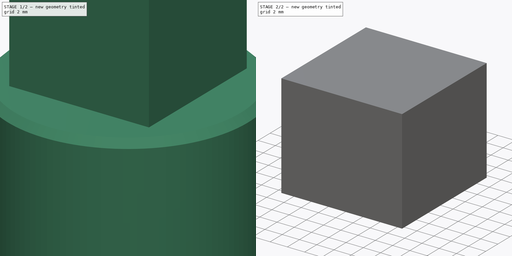
[diagram: build sequence overview — one tinted view per stage of 2, left to right]
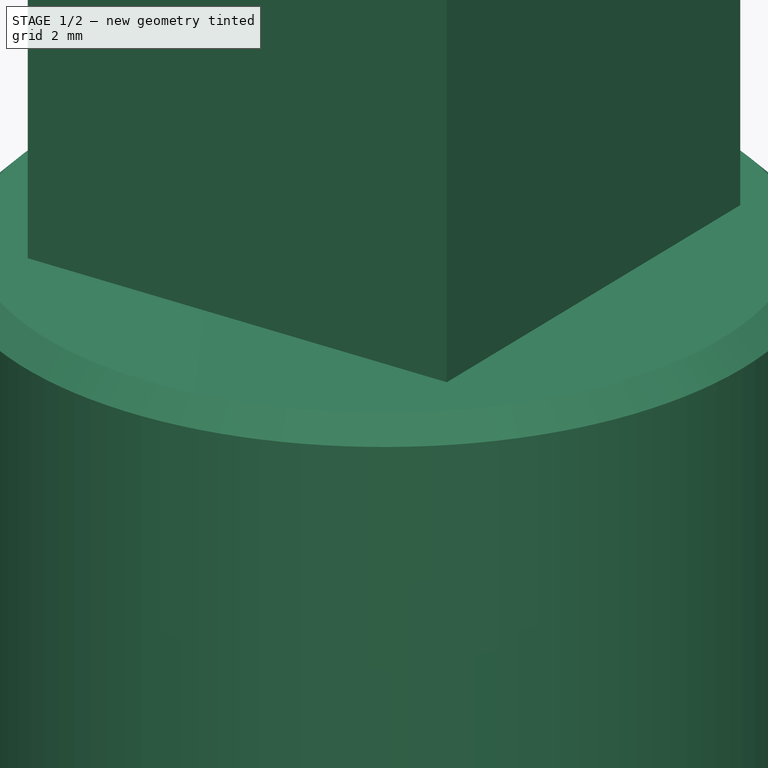
[diagram: stage 1 of 2 — iso view after this stage's code; geometry added in this stage tinted green]
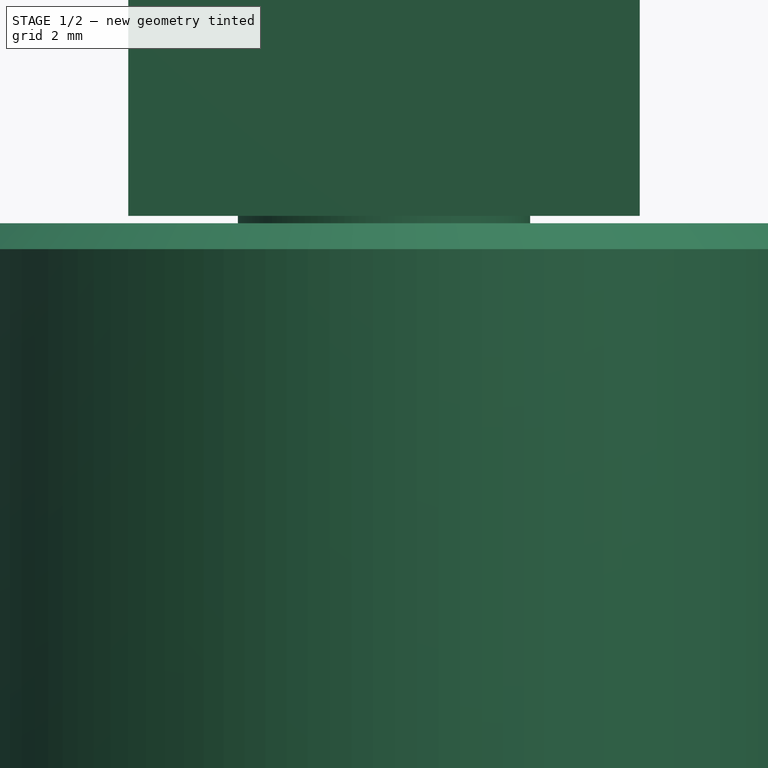
[diagram: stage 1 of 2 — front view after this stage's code; geometry added in this stage tinted green]
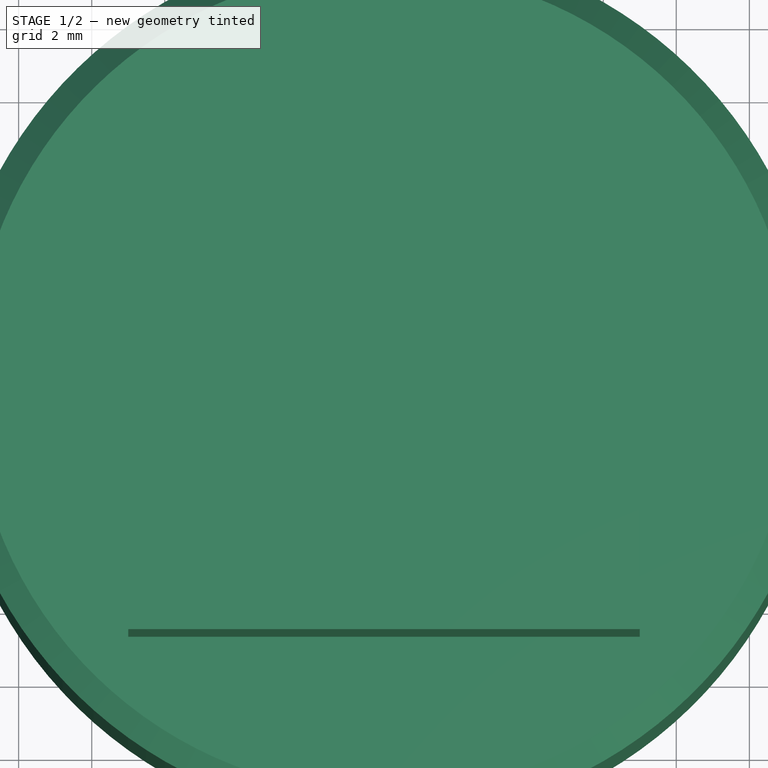
[diagram: stage 1 of 2 — top view after this stage's code; geometry added in this stage tinted green]
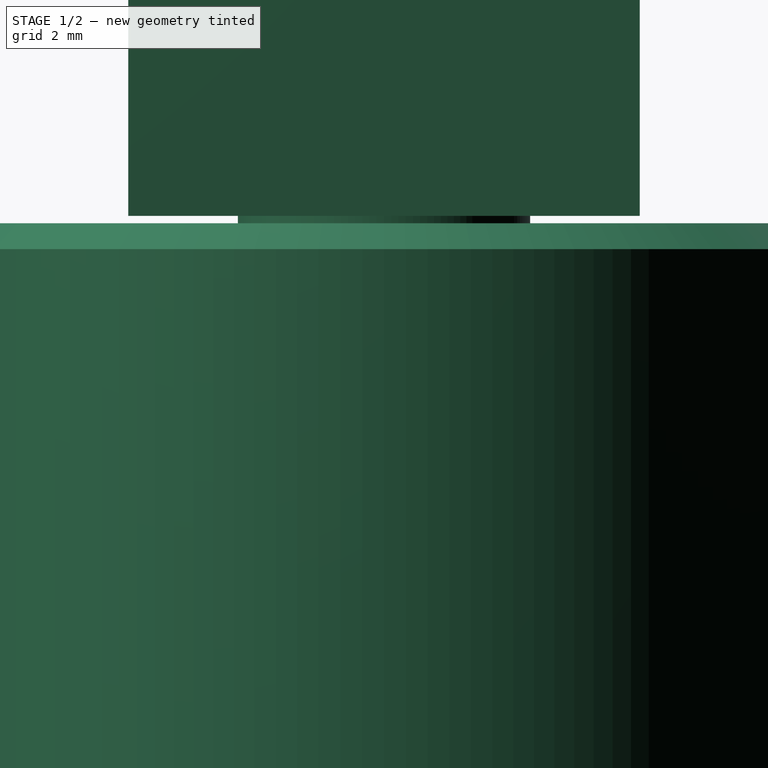
[diagram: stage 1 of 2 — right view after this stage's code; geometry added in this stage tinted green]
FCSTD DOCUMENT  (FreeCAD 1.1R42461 (Git))
Label: Ideas clamp gt2
License: Creative Commons Attribution-NonCommercial-ShareAlike 4.0
LicenseURL: https://creativecommons.org/licenses/by-nc-sa/4.0/
objects: Sketcher::SketchObject×4, App::Point×2, PartDesign::Body×2, PartDesign::Revolution×1, PartDesign::SubShapeBinder×1, PartDesign::Pad×1, PartDesign::Groove×1
note: 20 computed .brp shape members not serialized (recipe doc carries the construction recipe); baked Part::Feature solids carry a one-line shape summary decoded from their .brp

FEATURE [App::Point] Origin001  label="Origine"
  Role = Origin
FEATURE [Sketcher::SketchObject] Sketch
  ArcFitTolerance = 1e-06
  AttachmentSupport = -> [Origin]
  ExternalTypes = [0]
  FullyConstrained = true
  MakeInternals = false
  MapMode = 5
  Placement = pos=(0,0,0) rot=(1,0,0;1.5708rad)
  sketch-geometry (12):
    g0: LineSegment StartX=0 StartY=30 StartZ=0 EndX=5.29289 EndY=30 EndZ=0
    g1: LineSegment StartX=5.29289 StartY=30 StartZ=0 EndX=6 EndY=29.2929 EndZ=0
    g2: LineSegment StartX=6 StartY=29.2929 StartZ=0 EndX=6 EndY=24.7071 EndZ=0
    g3: LineSegment StartX=6 StartY=24.7071 StartZ=0 EndX=5.29289 EndY=24 EndZ=0
    g4: LineSegment StartX=5.29289 StartY=24 StartZ=0 EndX=4 EndY=24 EndZ=0
    g5: LineSegment StartX=4 StartY=24 StartZ=0 EndX=4 EndY=21 EndZ=0
    g6: LineSegment StartX=4 StartY=21 StartZ=0 EndX=11.2929 EndY=21 EndZ=0
    g7: LineSegment StartX=11.2929 StartY=21 StartZ=0 EndX=12 EndY=20.2929 EndZ=0
    g8: LineSegment StartX=12 StartY=20.2929 StartZ=0 EndX=12 EndY=0.707107 EndZ=0
    g9: LineSegment StartX=12 StartY=0.707107 StartZ=0 EndX=11.2929 EndY=0 EndZ=0
    g10: LineSegment StartX=11.2929 StartY=0 StartZ=0 EndX=0 EndY=0 EndZ=0
    g11: LineSegment StartX=0 StartY=0 StartZ=0 EndX=0 EndY=30 EndZ=0
  constraints (36):
    c: PointOnObject(g0,g-2)
    c: Horizontal(g0)
    c: Coincident(g0,g1)
    c: Coincident(g1,g2)
    c: Coincident(g4,g3)
    c: Horizontal(g4)
    c: Coincident(g4,g5)
    c: Vertical(g5)
    c: Coincident(g5,g6)
    c: Horizontal(g6)
    c: Coincident(g6,g7)
    c: Coincident(g7,g8)
    c: Vertical(g8)
    c: Coincident(g8,g9)
    c: Coincident(g9,g10)
    c: PointOnObject(g10,g-2)
    c: Horizontal(g10)
    c: Coincident(g10,g11)
    c: Coincident(g11,g0)
    c: Distance(g1,g1) = 1
    c: Angle(g-2,g1) = 0.785398
    c: Vertical(g2)
    c: Coincident(g3,g2)
    c: Perpendicular(g1,g3)
    c: Equal(g1,g3)
    c: Distance(g4,g11) = 4
    c: Distance(g3,g0) = 6
    c: Distance(g5,g5) = 3
    c: Parallel(g1,g7)
    c: Equal(g1,g7)
    c: Distance(g7,g11) = 12
    c: DistanceY(g11,g11) = 30
    c: Equal(g7,g9)
    c: Perpendicular(g7,g9)
    c: PointOnObject(g10,g-1)
    c: Distance(g1,g-2) = 6
FEATURE [PartDesign::Revolution] Revolution
  Angle = 360
  Angle2 = 60
  Axis = (0,2e-16,1)
  Base = (0,0,0)
  Profile = -> Sketch
  ReferenceAxis = -> Sketch [V_Axis]
  Refine = true
  Reversed = true
  Suppressed = false
  Type = 0
FEATURE [App::Point] Origin003  label="Origine002"
  Role = Origin
FEATURE [PartDesign::SubShapeBinder] Binder
  BindCopyOnChange = 0
  BindMode = 0
  ClaimChildren = false
  Context = -> Body001 [Binder.]
  Fuse = false
  MakeFace = true
  OffsetFill = false
  OffsetIntersection = false
  OffsetJoinType = 0
  OffsetOpenResult = false
  PartialLoad = false
  Refine = true
  Relative = true
  Support = -> [Body]
  _Version = 2
FEATURE [Sketcher::SketchObject] Sketch001
  ArcFitTolerance = 1e-06
  AttachmentOffset = pos=(0,0,0.2) rot=(0,0,1;0rad)
  AttachmentSupport = -> [Binder]
  ExternalTypes = [0]
  FullyConstrained = true
  MakeInternals = false
  MapMode = 5
  Placement = pos=(0,4.7e-15,21.2) rot=(0,0,1;0rad)
  sketch-geometry (5):
    g0: LineSegment StartX=-7 StartY=-7 StartZ=0 EndX=7 EndY=-7 EndZ=0
    g1: LineSegment StartX=7 StartY=-7 StartZ=0 EndX=7 EndY=7 EndZ=0
    g2: LineSegment StartX=7 StartY=7 StartZ=0 EndX=-7 EndY=7 EndZ=0
    g3: LineSegment StartX=-7 StartY=7 StartZ=0 EndX=-7 EndY=-7 EndZ=0
    g4: GeomPoint [constr] X=0 Y=0 Z=0
  constraints (12):
    c: Coincident(g0,g1)
    c: Coincident(g1,g2)
    c: Coincident(g2,g3)
    c: Coincident(g3,g0)
    c: Horizontal(g0)
    c: Horizontal(g2)
    c: Vertical(g1)
    c: Vertical(g3)
    c: Symmetric(g2,g0,g4)
    c: Distance(g1,g3) = 14
    c: Coincident(g4,g-1)
    c: Equal(g0,g3)
FEATURE [PartDesign::Pad] Pad
  Direction = (0,0,1)
  Length = 12
  Length2 = 10
  Profile = -> Sketch001
  ReferenceAxis = -> Sketch001 [N_Axis]
  Refine = true
  Suppressed = false
  Type = 0
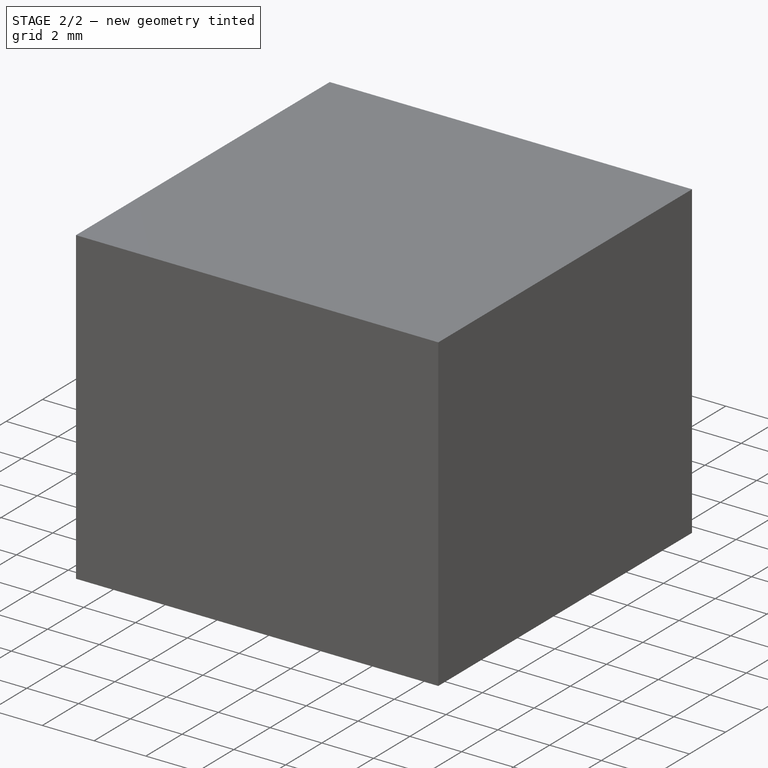
[diagram: stage 2 of 2 — iso view after this stage's code; geometry added in this stage tinted green]
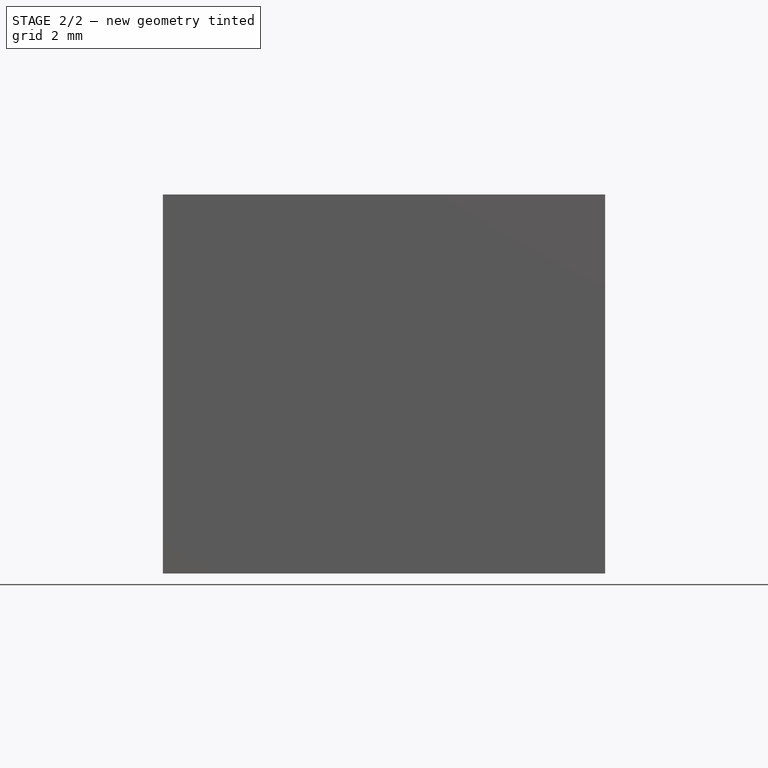
[diagram: stage 2 of 2 — front view after this stage's code; geometry added in this stage tinted green]
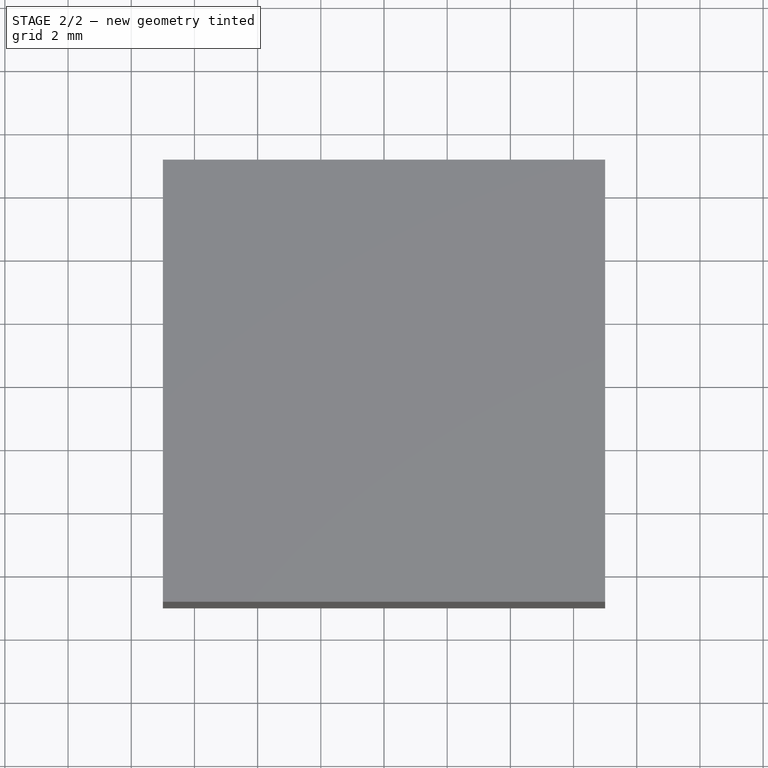
[diagram: stage 2 of 2 — top view after this stage's code; geometry added in this stage tinted green]
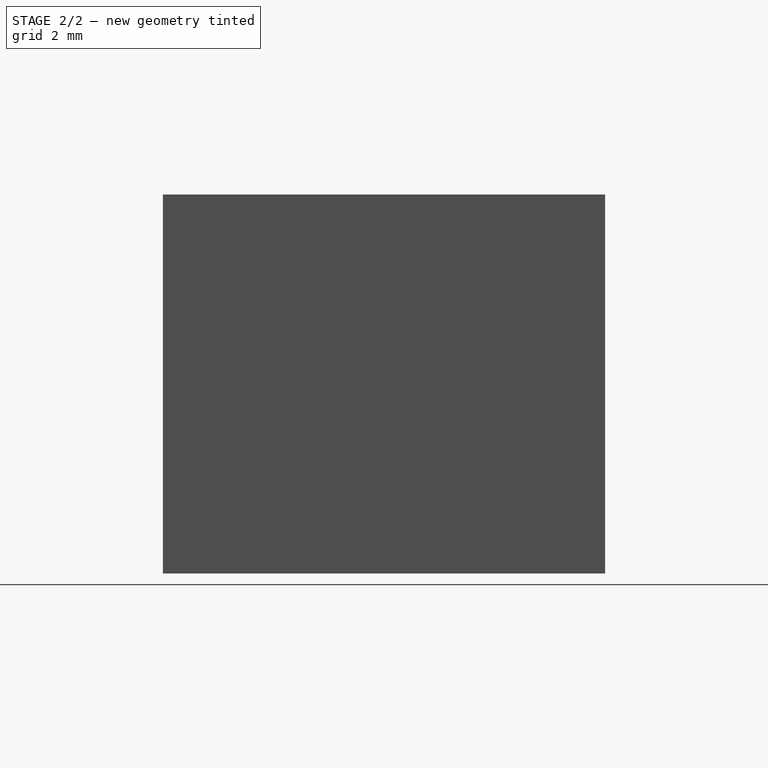
[diagram: stage 2 of 2 — right view after this stage's code; geometry added in this stage tinted green]
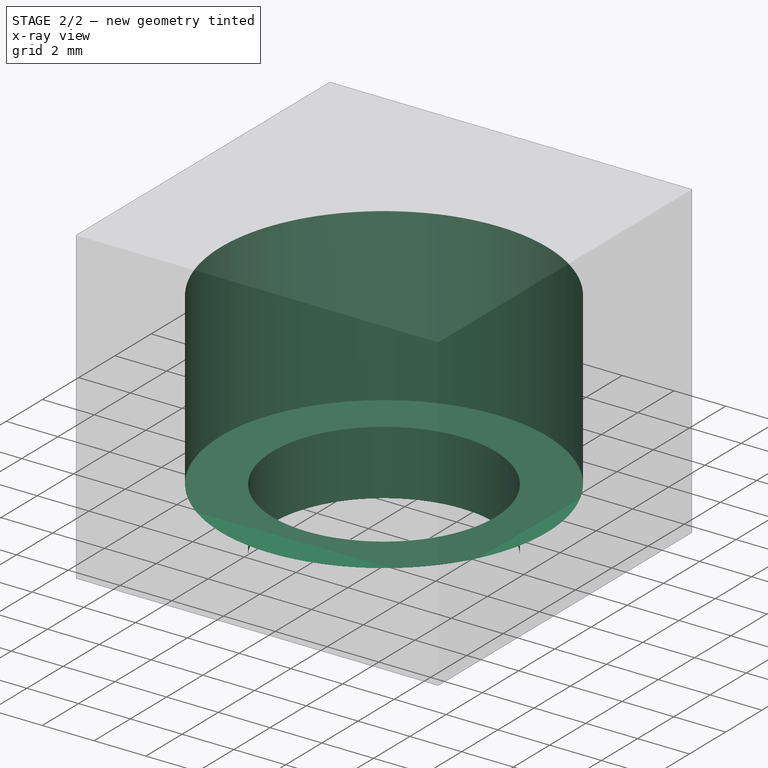
[diagram: stage 2 of 2 — x-ray composite at the iso view; earlier geometry ghosted, this stage's added geometry solid]
FEATURE [Sketcher::SketchObject] Sketch002
  ArcFitTolerance = 1e-06
  AttachmentSupport = -> [Origin002]
  ExternalGeometry = -> [Binder,Pad]
  ExternalTypes = [0,0,0,0,0]
  FullyConstrained = true
  MakeInternals = false
  MapMode = 5
  Placement = pos=(0,0,0) rot=(0.57735,0.57735,0.57735;2.0944rad)
  sketch-geometry (10):
    g0: LineSegment StartX=0 StartY=30.3 StartZ=0 EndX=0 EndY=21.2 EndZ=0
    g1: LineSegment StartX=0 StartY=21.2 StartZ=0 EndX=4.3 EndY=21.2 EndZ=0
    g2: LineSegment StartX=4.3 StartY=21.2 StartZ=0 EndX=4.3 EndY=23.7 EndZ=0
    g3: LineSegment StartX=4.3 StartY=23.7 StartZ=0 EndX=6.3 EndY=23.7 EndZ=0
    g4: LineSegment StartX=6.3 StartY=23.7 StartZ=0 EndX=6.3 EndY=30.3 EndZ=0
    g5: LineSegment StartX=6.3 StartY=30.3 StartZ=0 EndX=0 EndY=30.3 EndZ=0
    g6: ArcOfCircle [constr] CenterX=4.3 CenterY=23.7 CenterZ=0 NormalX=0 NormalY=0 NormalZ=1 AngleXU=0 Radius=0.3 StartAngle=1.5708 EndAngle=3.14159
    g7: LineSegment [constr] StartX=5.29289 StartY=30 StartZ=0 EndX=6 EndY=30 EndZ=0
    g8: LineSegment [constr] StartX=6 StartY=29.2929 StartZ=0 EndX=6 EndY=30 EndZ=0
    g9: ArcOfCircle [constr] CenterX=6 CenterY=30 CenterZ=0 NormalX=0 NormalY=0 NormalZ=1 AngleXU=0 Radius=0.3 StartAngle=2.8e-15 EndAngle=1.5708
  constraints (27):
    c: PointOnObject(g0,g-2)
    c: PointOnObject(g0,g-2)
    c: Coincident(g0,g1)
    c: Horizontal(g1)
    c: Coincident(g1,g2)
    c: Vertical(g2)
    c: Coincident(g2,g3)
    c: Horizontal(g3)
    c: Coincident(g3,g4)
    c: Coincident(g4,g5)
    c: Coincident(g5,g0)
    c: Horizontal(g5)
    c: Vertical(g4)
    c: PointOnObject(g1,g-13)
    c: DistanceX(g-21,g1) = 0.3
    c: Coincident(g6,g2)
    c: Tangent(g6,g-4) = 1.5708
    c: Tangent(g6,g-19) = -1.5708
    c: Coincident(g7,g-3)
    c: Horizontal(g7)
    c: Coincident(g8,g-11)
    c: Coincident(g8,g7)
    c: Vertical(g8)
    c: Coincident(g9,g7)
    c: Tangent(g9,g5) = -1.5708
    c: Tangent(g9,g4) = -1.5708
    c: Equal(g6,g9)
FEATURE [PartDesign::Groove] Groove
  Angle = 360
  Angle2 = 60
  Axis = (0,0,1)
  Base = (0,0,0)
  BaseFeature = -> Pad
  Profile = -> Sketch002
  ReferenceAxis = -> Sketch002 [V_Axis]
  Refine = true
  Suppressed = false
  Type = 0
FEATURE [PartDesign::Body] Body001  label="Corps001"
  AllowCompound = false
  Group = -> [Binder,Sketch001,Pad,Sketch002,Groove]
  Origin = -> Origin002
  Tip = -> Groove
FEATURE [Sketcher::SketchObject] Sketch003
  ArcFitTolerance = 1e-06
  AttachmentSupport = -> [Revolution]
  ExternalTypes = [0]
  FullyConstrained = true
  MakeInternals = false
  MapMode = 5
  Placement = pos=(0,0,0) rot=(1,0,0;3.14159rad)
  sketch-geometry (7):
    g0: LineSegment StartX=0 StartY=2.88675 StartZ=0 EndX=-2.5 EndY=1.44338 EndZ=0
    g1: LineSegment StartX=-2.5 StartY=1.44338 StartZ=0 EndX=-2.5 EndY=-1.44338 EndZ=0
    g2: LineSegment StartX=-2.5 StartY=-1.44338 StartZ=0 EndX=0 EndY=-2.88675 EndZ=0
    g3: LineSegment StartX=0 StartY=-2.88675 StartZ=0 EndX=2.5 EndY=-1.44338 EndZ=0
    g4: LineSegment StartX=2.5 StartY=-1.44338 StartZ=0 EndX=2.5 EndY=1.44338 EndZ=0
    g5: LineSegment StartX=2.5 StartY=1.44338 StartZ=0 EndX=0 EndY=2.88675 EndZ=0
    g6: Circle [constr] CenterX=0 CenterY=0 CenterZ=0 NormalX=0 NormalY=0 NormalZ=1 AngleXU=0 Radius=2.88675
  constraints (16):
    c: Coincident(g0,g1)
    c: Coincident(g1,g2)
    c: Coincident(g2,g3)
    c: Coincident(g3,g4)
    c: Coincident(g4,g5)
    c: Coincident(g5,g0)
    c: Equal(g0, g1-g5) x5
    c: PointOnObject(g0,g6)
    c: PointOnObject(g1,g6)
    c: PointOnObject(g2,g6)
    c: PointOnObject(g3,g6)
    c: PointOnObject(g4,g6)
    c: PointOnObject(g5,g6)
    c: Coincident(g6,g-1)
    c: PointOnObject(g5,g-2)
    c: Distance(g3,g1) = 5
FEATURE [PartDesign::Body] Body  label="Corps"
  AllowCompound = false
  Group = -> [Sketch,Revolution,Sketch003]
  Origin = -> Origin
  Tip = -> Revolution
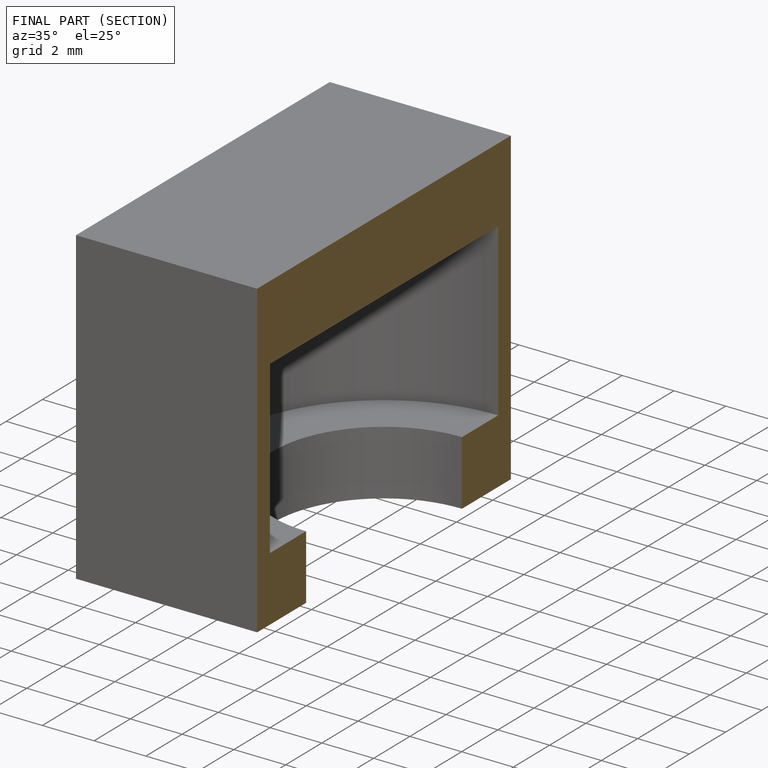
[diagram: finished part — half-section view (interior)]
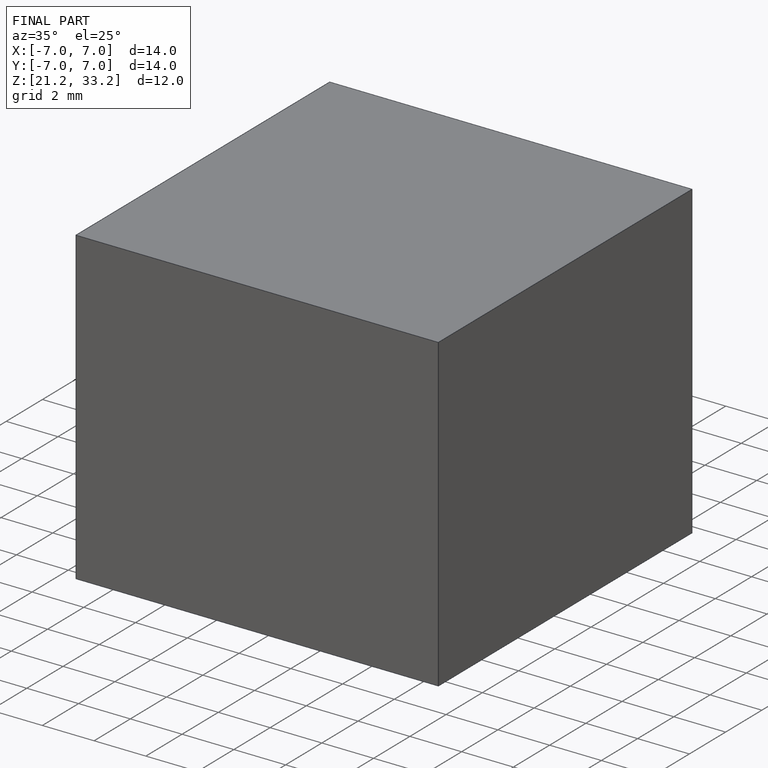
[diagram: finished part — iso view with bounding-box wireframe]
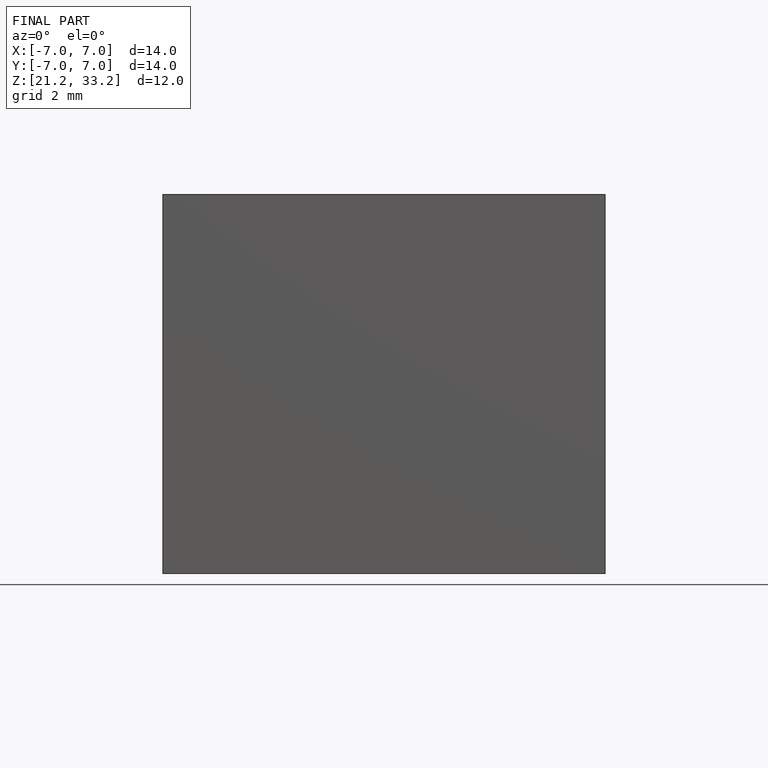
[diagram: finished part — front view with bounding-box wireframe]
